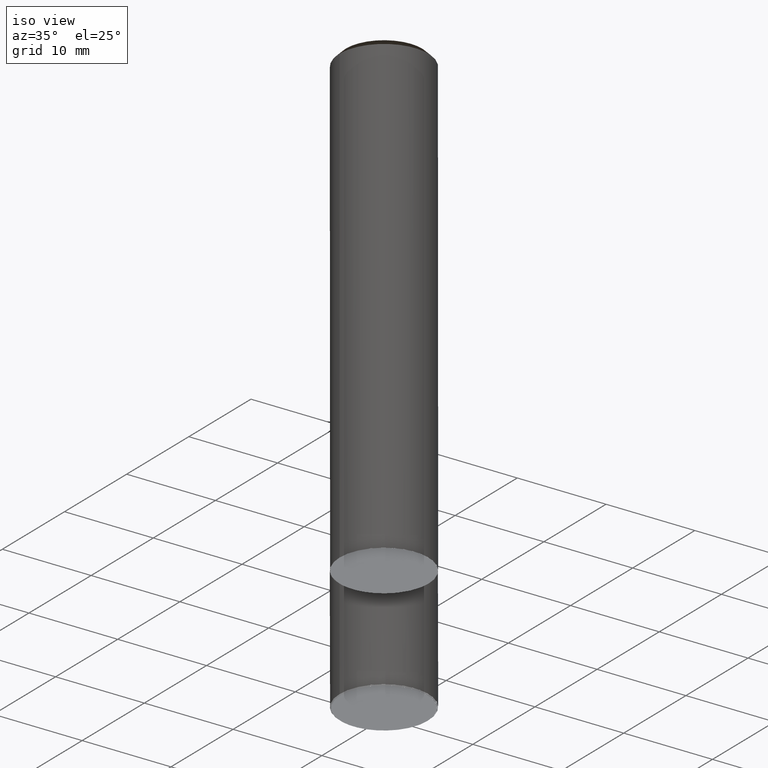
[diagram: clean part render]
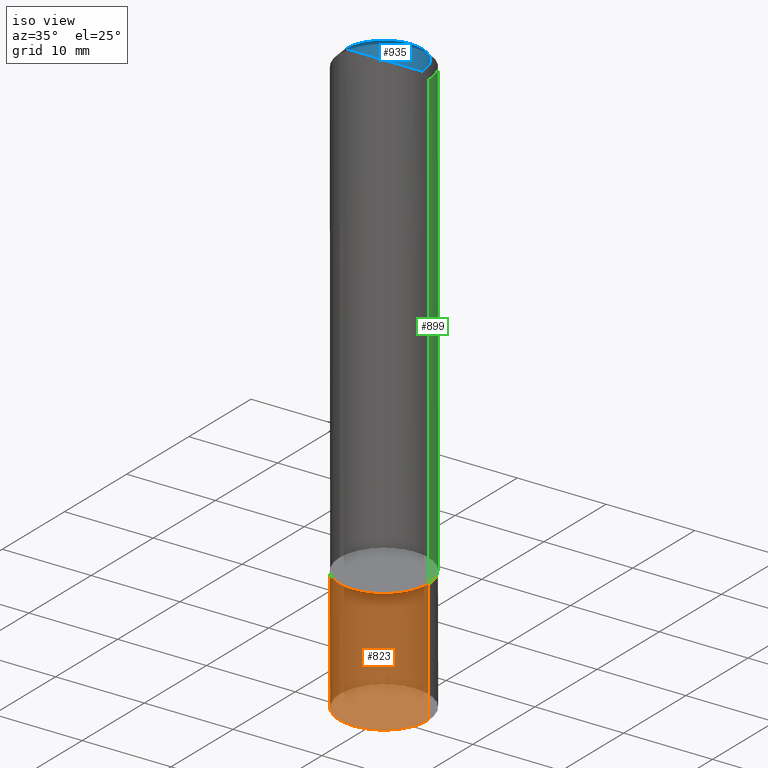
[diagram: same view with three faces highlighted in distinct colors, each labeled with its STEP entity id]
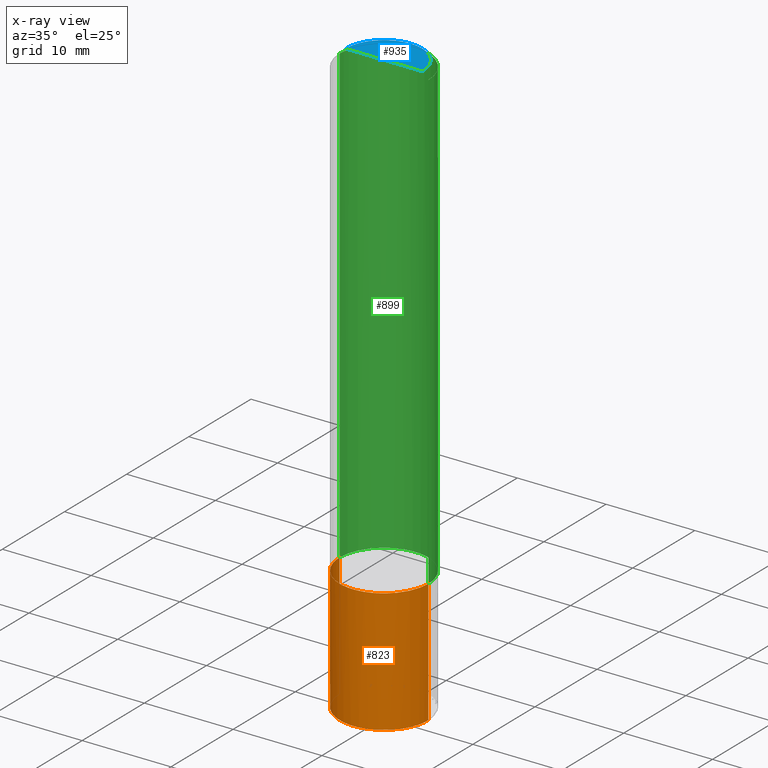
[diagram: x-ray of the same camera — body ghosted, the three highlighted faces saturated]
A machine part, iso view with three faces highlighted in distinct colors.
The next image is the same camera in x-ray (body ghosted, the three faces saturated) — at least one of them is partly hidden behind the body in this view.
Their STEP definitions:

[orange] entity #823 — the highlighted face is a freeform B-spline surface patch.
#645=CARTESIAN_POINT('',(5.0,0.0,-13.901));
#649=CARTESIAN_POINT('',(-5.0,0.0,-13.901));
#650=CARTESIAN_POINT('',(5.0,0.0,-0.001));
#654=CARTESIAN_POINT('',(-5.0,0.0,-0.001));
#659=CARTESIAN_POINT('',(-5.0,-5.0,-13.901));
#660=CARTESIAN_POINT('',(0.0,-5.0,-13.901));
#661=CARTESIAN_POINT('',(5.0,-5.0,-13.901));
#662=CARTESIAN_POINT('',(-5.0,-5.0,-0.001));
#663=CARTESIAN_POINT('',(0.0,-5.0,-0.001));
#664=CARTESIAN_POINT('',(5.0,-5.0,-0.001));
#804=(
BOUNDED_SURFACE()
B_SPLINE_SURFACE(1,2,(
(#649,#659,#660,#661,#645),
(#654,#662,#663,#664,#650)
), .UNSPECIFIED.,.F.,.F.,.F.)
B_SPLINE_SURFACE_WITH_KNOTS((2,2),(3,2,3),(
0.0,1.0),(
0.0,0.5,1.0), .UNSPECIFIED.)
GEOMETRIC_REPRESENTATION_ITEM()
RATIONAL_B_SPLINE_SURFACE(((1.0,0.707106781187,1.0,0.707106781187,1.0),
(1.0,0.707106781187,1.0,0.707106781187,1.0)
))
REPRESENTATION_ITEM('')
SURFACE()
);
#805=(
BOUNDED_CURVE()
B_SPLINE_CURVE(1,(#654,#649),.UNSPECIFIED.,.F.,.F.)
B_SPLINE_CURVE_WITH_KNOTS((2,2),
(0.0,1.0),.UNSPECIFIED.)
CURVE()
GEOMETRIC_REPRESENTATION_ITEM()
RATIONAL_B_SPLINE_CURVE((1.0,1.0))
REPRESENTATION_ITEM('')
);
#806=(
BOUNDED_CURVE()
B_SPLINE_CURVE(2,(#649,#659,#660,#661,#645),.UNSPECIFIED.,.F.,.F.)
B_SPLINE_CURVE_WITH_KNOTS((3,2,3),
(0.0,0.5,1.0),.UNSPECIFIED.)
CURVE()
GEOMETRIC_REPRESENTATION_ITEM()
RATIONAL_B_SPLINE_CURVE((1.0,0.707106781187,1.0,0.707106781187,1.0))
REPRESENTATION_ITEM('')
);
#807=(
BOUNDED_CURVE()
B_SPLINE_CURVE(1,(#645,#650),.UNSPECIFIED.,.F.,.F.)
B_SPLINE_CURVE_WITH_KNOTS((2,2),
(0.0,1.0),.UNSPECIFIED.)
CURVE()
GEOMETRIC_REPRESENTATION_ITEM()
RATIONAL_B_SPLINE_CURVE((1.0,1.0))
REPRESENTATION_ITEM('')
);
#808=(
BOUNDED_CURVE()
B_SPLINE_CURVE(2,(#650,#664,#663,#662,#654),.UNSPECIFIED.,.F.,.F.)
B_SPLINE_CURVE_WITH_KNOTS((3,2,3),
(0.0,0.5,1.0),.UNSPECIFIED.)
CURVE()
GEOMETRIC_REPRESENTATION_ITEM()
RATIONAL_B_SPLINE_CURVE((1.0,0.707106781187,1.0,0.707106781187,1.0))
REPRESENTATION_ITEM('')
);
#809=VERTEX_POINT('',#645);
#810=VERTEX_POINT('',#649);
#811=VERTEX_POINT('',#650);
#812=VERTEX_POINT('',#654);
#813=EDGE_CURVE('',#812,#810,#805,.T.);
#814=EDGE_CURVE('',#810,#809,#806,.T.);
#815=EDGE_CURVE('',#809,#811,#807,.T.);
#816=EDGE_CURVE('',#811,#812,#808,.T.);
#817=ORIENTED_EDGE('',*,*,#813,.T.);
#818=ORIENTED_EDGE('',*,*,#814,.T.);
#819=ORIENTED_EDGE('',*,*,#815,.T.);
#820=ORIENTED_EDGE('',*,*,#816,.T.);
#821=EDGE_LOOP('',(#817,#818,#819,#820));
#822=FACE_OUTER_BOUND('',#821,.T.);
#823=ADVANCED_FACE('',(#822),#804,.T.);

[blue] entity #935 — the highlighted face is a freeform B-spline surface patch.
#675=CARTESIAN_POINT('',(4.3,0.0,51.999));
#676=CARTESIAN_POINT('',(4.3,4.3,51.999));
#677=CARTESIAN_POINT('',(0.0,4.3,51.999));
#678=CARTESIAN_POINT('',(-4.3,4.3,51.999));
#679=CARTESIAN_POINT('',(-4.3,0.0,51.999));
#680=CARTESIAN_POINT('',(0.0,0.0,51.999));
#920=(
BOUNDED_SURFACE()
B_SPLINE_SURFACE(1,2,(
(#675,#676,#677,#678,#679),
(#680,#680,#680,#680,#680)
), .UNSPECIFIED.,.F.,.F.,.F.)
B_SPLINE_SURFACE_WITH_KNOTS((2,2),(3,2,3),(
0.0,1.0),(
0.0,0.5,1.0), .UNSPECIFIED.)
GEOMETRIC_REPRESENTATION_ITEM()
RATIONAL_B_SPLINE_SURFACE(((1.0,0.707106781187,1.0,0.707106781187,1.0),
(1.0,0.707106781187,1.0,0.707106781187,1.0)
))
REPRESENTATION_ITEM('')
SURFACE()
);
#921=(
BOUNDED_CURVE()
B_SPLINE_CURVE(1,(#680,#675),.UNSPECIFIED.,.F.,.F.)
B_SPLINE_CURVE_WITH_KNOTS((2,2),
(0.0,1.0),.UNSPECIFIED.)
CURVE()
GEOMETRIC_REPRESENTATION_ITEM()
RATIONAL_B_SPLINE_CURVE((1.0,1.0))
REPRESENTATION_ITEM('')
);
#922=(
BOUNDED_CURVE()
B_SPLINE_CURVE(2,(#675,#676,#677,#678,#679),.UNSPECIFIED.,.F.,.F.)
B_SPLINE_CURVE_WITH_KNOTS((3,2,3),
(0.0,0.5,1.0),.UNSPECIFIED.)
CURVE()
GEOMETRIC_REPRESENTATION_ITEM()
RATIONAL_B_SPLINE_CURVE((1.0,0.707106781187,1.0,0.707106781187,1.0))
REPRESENTATION_ITEM('')
);
#923=(
BOUNDED_CURVE()
B_SPLINE_CURVE(1,(#679,#680),.UNSPECIFIED.,.F.,.F.)
B_SPLINE_CURVE_WITH_KNOTS((2,2),
(0.0,1.0),.UNSPECIFIED.)
CURVE()
GEOMETRIC_REPRESENTATION_ITEM()
RATIONAL_B_SPLINE_CURVE((1.0,1.0))
REPRESENTATION_ITEM('')
);
#924=VERTEX_POINT('',#675);
#925=VERTEX_POINT('',#679);
#926=VERTEX_POINT('',#680);
#927=EDGE_CURVE('',#926,#924,#921,.T.);
#928=EDGE_CURVE('',#924,#925,#922,.T.);
#929=EDGE_CURVE('',#925,#926,#923,.T.);
#930=ORIENTED_EDGE('',*,*,#927,.T.);
#931=ORIENTED_EDGE('',*,*,#928,.T.);
#932=ORIENTED_EDGE('',*,*,#929,.T.);
#933=EDGE_LOOP('',(#930,#931,#932));
#934=FACE_OUTER_BOUND('',#933,.T.);
#935=ADVANCED_FACE('',(#934),#920,.T.);

[green] entity #899 — the highlighted face is a freeform B-spline surface patch.
#665=CARTESIAN_POINT('',(5.0,0.0,0.0));
#666=CARTESIAN_POINT('',(5.0,5.0,0.0));
#667=CARTESIAN_POINT('',(0.0,5.0,0.0));
#668=CARTESIAN_POINT('',(-5.0,5.0,0.0));
#669=CARTESIAN_POINT('',(-5.0,0.0,0.0));
#670=CARTESIAN_POINT('',(5.0,0.0,51.299));
#671=CARTESIAN_POINT('',(5.0,5.0,51.299));
#672=CARTESIAN_POINT('',(0.0,5.0,51.299));
#673=CARTESIAN_POINT('',(-5.0,5.0,51.299));
#674=CARTESIAN_POINT('',(-5.0,0.0,51.299));
#880=(
BOUNDED_SURFACE()
B_SPLINE_SURFACE(1,2,(
(#665,#666,#667,#668,#669),
(#670,#671,#672,#673,#674)
), .UNSPECIFIED.,.F.,.F.,.F.)
B_SPLINE_SURFACE_WITH_KNOTS((2,2),(3,2,3),(
0.0,1.0),(
0.0,0.5,1.0), .UNSPECIFIED.)
GEOMETRIC_REPRESENTATION_ITEM()
RATIONAL_B_SPLINE_SURFACE(((1.0,0.707106781187,1.0,0.707106781187,1.0),
(1.0,0.707106781187,1.0,0.707106781187,1.0)
))
REPRESENTATION_ITEM('')
SURFACE()
);
#881=(
BOUNDED_CURVE()
B_SPLINE_CURVE(2,(#670,#671,#672,#673,#674),.UNSPECIFIED.,.F.,.F.)
B_SPLINE_CURVE_WITH_KNOTS((3,2,3),
(0.0,0.5,1.0),.UNSPECIFIED.)
CURVE()
GEOMETRIC_REPRESENTATION_ITEM()
RATIONAL_B_SPLINE_CURVE((1.0,0.707106781187,1.0,0.707106781187,1.0))
REPRESENTATION_ITEM('')
);
#882=(
BOUNDED_CURVE()
B_SPLINE_CURVE(1,(#674,#669),.UNSPECIFIED.,.F.,.F.)
B_SPLINE_CURVE_WITH_KNOTS((2,2),
(0.0,1.0),.UNSPECIFIED.)
CURVE()
GEOMETRIC_REPRESENTATION_ITEM()
RATIONAL_B_SPLINE_CURVE((1.0,1.0))
REPRESENTATION_ITEM('')
);
#883=(
BOUNDED_CURVE()
B_SPLINE_CURVE(2,(#669,#668,#667,#666,#665),.UNSPECIFIED.,.F.,.F.)
B_SPLINE_CURVE_WITH_KNOTS((3,2,3),
(0.0,0.5,1.0),.UNSPECIFIED.)
CURVE()
GEOMETRIC_REPRESENTATION_ITEM()
RATIONAL_B_SPLINE_CURVE((1.0,0.707106781187,1.0,0.707106781187,1.0))
REPRESENTATION_ITEM('')
);
#884=(
BOUNDED_CURVE()
B_SPLINE_CURVE(1,(#665,#670),.UNSPECIFIED.,.F.,.F.)
B_SPLINE_CURVE_WITH_KNOTS((2,2),
(0.0,1.0),.UNSPECIFIED.)
CURVE()
GEOMETRIC_REPRESENTATION_ITEM()
RATIONAL_B_SPLINE_CURVE((1.0,1.0))
REPRESENTATION_ITEM('')
);
#885=VERTEX_POINT('',#665);
#886=VERTEX_POINT('',#669);
#887=VERTEX_POINT('',#670);
#888=VERTEX_POINT('',#674);
#889=EDGE_CURVE('',#887,#888,#881,.T.);
#890=EDGE_CURVE('',#888,#886,#882,.T.);
#891=EDGE_CURVE('',#886,#885,#883,.T.);
#892=EDGE_CURVE('',#885,#887,#884,.T.);
#893=ORIENTED_EDGE('',*,*,#889,.T.);
#894=ORIENTED_EDGE('',*,*,#890,.T.);
#895=ORIENTED_EDGE('',*,*,#891,.T.);
#896=ORIENTED_EDGE('',*,*,#892,.T.);
#897=EDGE_LOOP('',(#893,#894,#895,#896));
#898=FACE_OUTER_BOUND('',#897,.T.);
#899=ADVANCED_FACE('',(#898),#880,.T.);